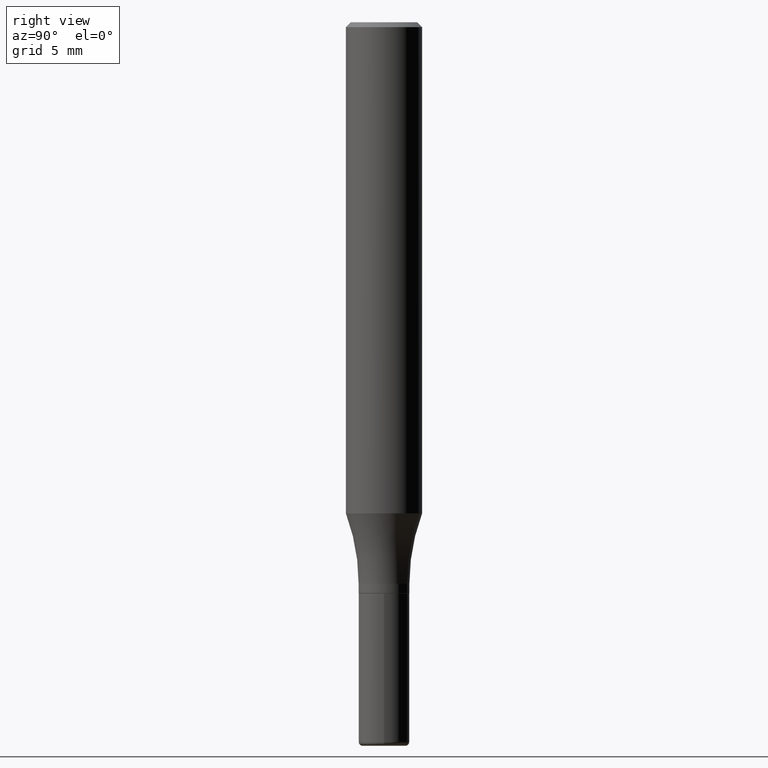
[diagram: clean part render]
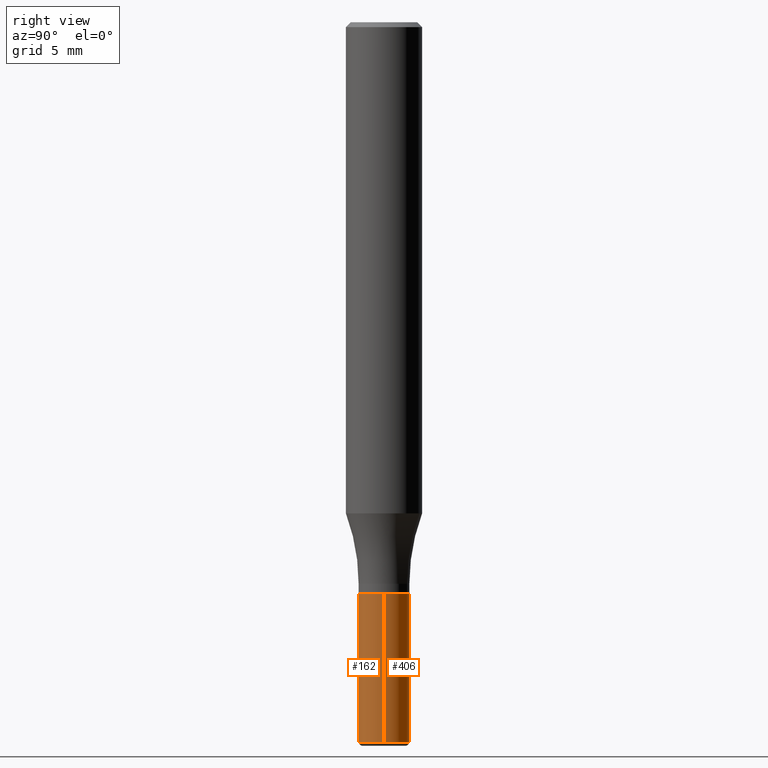
[diagram: same view with one multi-face feature highlighted, each face labeled with its STEP entity id]
A machine part, right view. The highlighted faces form ONE feature: a constant-radius fillet chain: 2 tangent blend faces with common blend radius 2.0002 mm. The faces share edges in the B-rep.
Their STEP definitions:
[1] entity #162 (Cylinder):
#7 = LINE ( 'NONE', #309, #206 ) ;
#19 = AXIS2_PLACEMENT_3D ( 'NONE', #62, #213, #343 ) ;
#51 = DIRECTION ( 'NONE',  ( -2.445468806185136877E-29, 3.491481338843145188E-15, 1.000000000000000000 ) ) ;
#61 = VERTEX_POINT ( 'NONE', #265 ) ;
#62 = CARTESIAN_POINT ( 'NONE',  ( 0.000000000000000000, 0.000000000000000000, 0.000000000000000000 ) ) ;
#64 = CARTESIAN_POINT ( 'NONE',  ( -0.07874999999999994504, -6.430393235952897589E-15, -2.232299999999999951 ) ) ;
#70 = ORIENTED_EDGE ( 'NONE', *, *, #139, .T. ) ;
#71 = DIRECTION ( 'NONE',  ( 1.000000000000000000, -6.982962677686266711E-15, 0.000000000000000000 ) ) ;
#89 = EDGE_CURVE ( 'NONE', #345, #486, #137, .T. ) ;
#109 = ORIENTED_EDGE ( 'NONE', *, *, #89, .T. ) ;
#113 = CARTESIAN_POINT ( 'NONE',  ( 5.459020016047079569E-29, -7.794033792699553278E-15, -2.232299999999999951 ) ) ;
#137 = CIRCLE ( 'NONE', #218, 0.07874999999999994504 ) ;
#139 = EDGE_CURVE ( 'NONE', #486, #403, #323, .T. ) ;
#162 = ADVANCED_FACE ( 'NONE', ( #230 ), #237, .T. ) ;
#176 = CIRCLE ( 'NONE', #224, 0.07875000000000000056 ) ;
#206 = VECTOR ( 'NONE', #471, 39.37007874015748143 ) ;
#212 = EDGE_LOOP ( 'NONE', ( #361, #109, #70, #488 ) ) ;
#213 = DIRECTION ( 'NONE',  ( -2.445468806185136597E-29, 3.491481338843145583E-15, 1.000000000000000000 ) ) ;
#215 = CARTESIAN_POINT ( 'NONE',  ( 0.07875000000000000056, -6.735765798896194427E-15, -1.771700000000000053 ) ) ;
#218 = AXIS2_PLACEMENT_3D ( 'NONE', #113, #431, #71 ) ;
#224 = AXIS2_PLACEMENT_3D ( 'NONE', #325, #481, #395 ) ;
#230 = FACE_OUTER_BOUND ( 'NONE', #212, .T. ) ;
#237 = CYLINDRICAL_SURFACE ( 'NONE', #19, 0.07874999999999997280 ) ;
#265 = CARTESIAN_POINT ( 'NONE',  ( -0.07875000000000000056, -6.430393235952897589E-15, -1.771700000000000053 ) ) ;
#266 = EDGE_CURVE ( 'NONE', #61, #403, #176, .T. ) ;
#302 = CARTESIAN_POINT ( 'NONE',  ( 0.07874999999999994504, -8.343942103567346623E-15, -2.232299999999999951 ) ) ;
#309 = CARTESIAN_POINT ( 'NONE',  ( -0.07874999999999997280, 5.595524044110787031E-16, -3.873661383575737091E-30 ) ) ;
#323 = LINE ( 'NONE', #410, #339 ) ;
#325 = CARTESIAN_POINT ( 'NONE',  ( 4.332637083918206427E-29, -6.185857488028401081E-15, -1.771700000000000053 ) ) ;
#339 = VECTOR ( 'NONE', #51, 39.37007874015748143 ) ;
#343 = DIRECTION ( 'NONE',  ( 1.000000000000000000, -6.982962677686267499E-15, 4.876176775795935793E-29 ) ) ;
#345 = VERTEX_POINT ( 'NONE', #64 ) ;
#361 = ORIENTED_EDGE ( 'NONE', *, *, #483, .F. ) ;
#395 = DIRECTION ( 'NONE',  ( 1.000000000000000000, -6.982962677686261977E-15, 0.000000000000000000 ) ) ;
#403 = VERTEX_POINT ( 'NONE', #215 ) ;
#410 = CARTESIAN_POINT ( 'NONE',  ( 0.07874999999999997280, -5.499083108677933457E-16, 3.839989210939298316E-30 ) ) ;
#431 = DIRECTION ( 'NONE',  ( -2.445468806185136597E-29, 3.491481338843145583E-15, 1.000000000000000000 ) ) ;
#471 = DIRECTION ( 'NONE',  ( -2.445468806185136877E-29, 3.491481338843145188E-15, 1.000000000000000000 ) ) ;
#481 = DIRECTION ( 'NONE',  ( -2.445468806185136597E-29, 3.491481338843145583E-15, 1.000000000000000000 ) ) ;
#483 = EDGE_CURVE ( 'NONE', #345, #61, #7, .T. ) ;
#486 = VERTEX_POINT ( 'NONE', #302 ) ;
#488 = ORIENTED_EDGE ( 'NONE', *, *, #266, .F. ) ;
[2] entity #406 (Cylinder):
#7 = LINE ( 'NONE', #309, #206 ) ;
#9 = DIRECTION ( 'NONE',  ( -2.445468806185136597E-29, 3.491481338843145583E-15, 1.000000000000000000 ) ) ;
#51 = DIRECTION ( 'NONE',  ( -2.445468806185136877E-29, 3.491481338843145188E-15, 1.000000000000000000 ) ) ;
#61 = VERTEX_POINT ( 'NONE', #265 ) ;
#64 = CARTESIAN_POINT ( 'NONE',  ( -0.07874999999999994504, -6.430393235952897589E-15, -2.232299999999999951 ) ) ;
#84 = ORIENTED_EDGE ( 'NONE', *, *, #275, .T. ) ;
#93 = AXIS2_PLACEMENT_3D ( 'NONE', #478, #121, #236 ) ;
#105 = DIRECTION ( 'NONE',  ( -2.445468806185136597E-29, 3.491481338843145583E-15, 1.000000000000000000 ) ) ;
#121 = DIRECTION ( 'NONE',  ( -2.445468806185136597E-29, 3.491481338843145583E-15, 1.000000000000000000 ) ) ;
#139 = EDGE_CURVE ( 'NONE', #486, #403, #323, .T. ) ;
#141 = CYLINDRICAL_SURFACE ( 'NONE', #157, 0.07874999999999997280 ) ;
#157 = AXIS2_PLACEMENT_3D ( 'NONE', #166, #105, #333 ) ;
#166 = CARTESIAN_POINT ( 'NONE',  ( 0.000000000000000000, 0.000000000000000000, 0.000000000000000000 ) ) ;
#170 = DIRECTION ( 'NONE',  ( 1.000000000000000000, -6.982962677686261977E-15, 0.000000000000000000 ) ) ;
#206 = VECTOR ( 'NONE', #471, 39.37007874015748143 ) ;
#208 = EDGE_LOOP ( 'NONE', ( #84, #445, #499, #493 ) ) ;
#215 = CARTESIAN_POINT ( 'NONE',  ( 0.07875000000000000056, -6.735765798896194427E-15, -1.771700000000000053 ) ) ;
#236 = DIRECTION ( 'NONE',  ( 1.000000000000000000, -6.982962677686266711E-15, 0.000000000000000000 ) ) ;
#251 = CARTESIAN_POINT ( 'NONE',  ( 4.332637083918206427E-29, -6.185857488028401081E-15, -1.771700000000000053 ) ) ;
#265 = CARTESIAN_POINT ( 'NONE',  ( -0.07875000000000000056, -6.430393235952897589E-15, -1.771700000000000053 ) ) ;
#275 = EDGE_CURVE ( 'NONE', #486, #345, #489, .T. ) ;
#302 = CARTESIAN_POINT ( 'NONE',  ( 0.07874999999999994504, -8.343942103567346623E-15, -2.232299999999999951 ) ) ;
#309 = CARTESIAN_POINT ( 'NONE',  ( -0.07874999999999997280, 5.595524044110787031E-16, -3.873661383575737091E-30 ) ) ;
#323 = LINE ( 'NONE', #410, #339 ) ;
#333 = DIRECTION ( 'NONE',  ( 1.000000000000000000, -6.982962677686267499E-15, 4.876176775795935793E-29 ) ) ;
#339 = VECTOR ( 'NONE', #51, 39.37007874015748143 ) ;
#345 = VERTEX_POINT ( 'NONE', #64 ) ;
#347 = CIRCLE ( 'NONE', #396, 0.07875000000000000056 ) ;
#374 = EDGE_CURVE ( 'NONE', #403, #61, #347, .T. ) ;
#396 = AXIS2_PLACEMENT_3D ( 'NONE', #251, #9, #170 ) ;
#403 = VERTEX_POINT ( 'NONE', #215 ) ;
#406 = ADVANCED_FACE ( 'NONE', ( #457 ), #141, .T. ) ;
#410 = CARTESIAN_POINT ( 'NONE',  ( 0.07874999999999997280, -5.499083108677933457E-16, 3.839989210939298316E-30 ) ) ;
#445 = ORIENTED_EDGE ( 'NONE', *, *, #483, .T. ) ;
#457 = FACE_OUTER_BOUND ( 'NONE', #208, .T. ) ;
#471 = DIRECTION ( 'NONE',  ( -2.445468806185136877E-29, 3.491481338843145188E-15, 1.000000000000000000 ) ) ;
#478 = CARTESIAN_POINT ( 'NONE',  ( 5.459020016047079569E-29, -7.794033792699553278E-15, -2.232299999999999951 ) ) ;
#483 = EDGE_CURVE ( 'NONE', #345, #61, #7, .T. ) ;
#486 = VERTEX_POINT ( 'NONE', #302 ) ;
#489 = CIRCLE ( 'NONE', #93, 0.07874999999999994504 ) ;
#493 = ORIENTED_EDGE ( 'NONE', *, *, #139, .F. ) ;
#499 = ORIENTED_EDGE ( 'NONE', *, *, #374, .F. ) ;